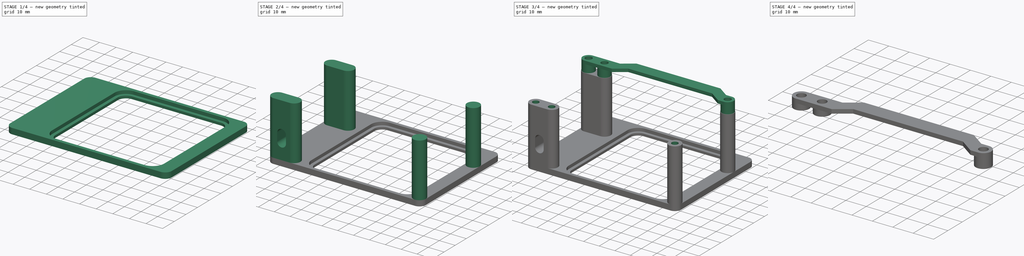
[diagram: build sequence overview — one tinted view per stage of 4, left to right]
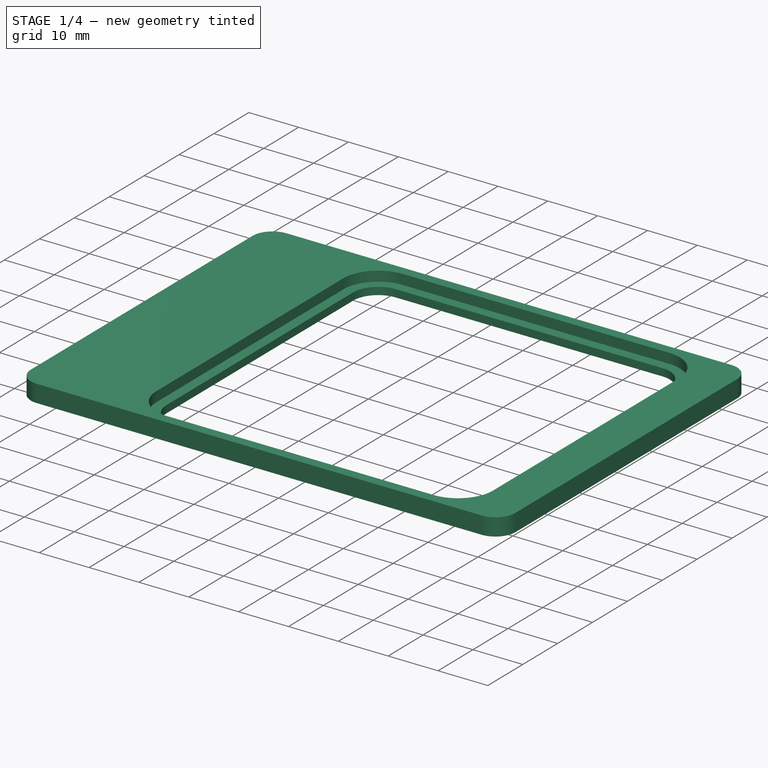
[diagram: stage 1 of 4 — iso view after this stage's code; geometry added in this stage tinted green]
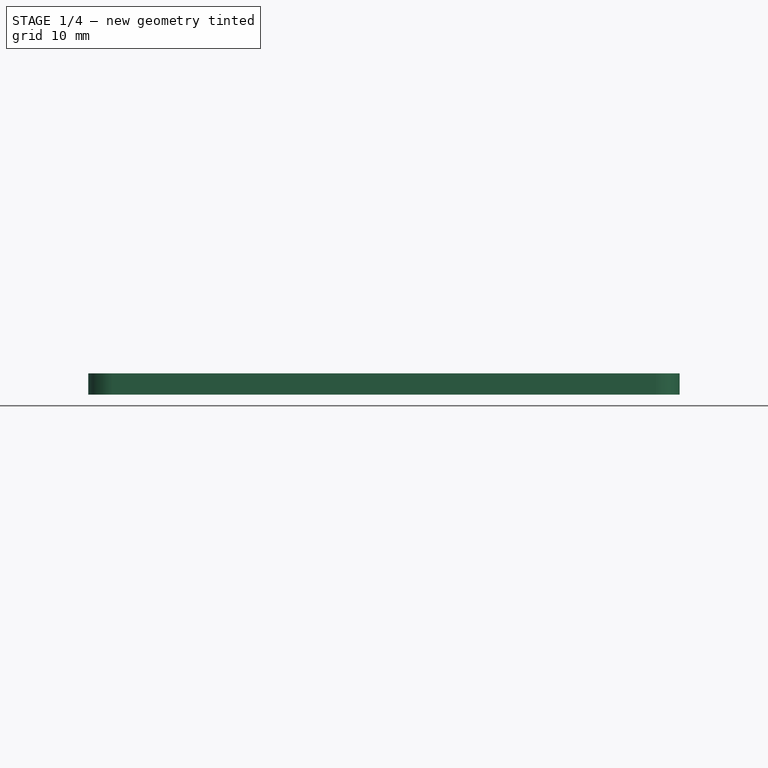
[diagram: stage 1 of 4 — front view after this stage's code; geometry added in this stage tinted green]
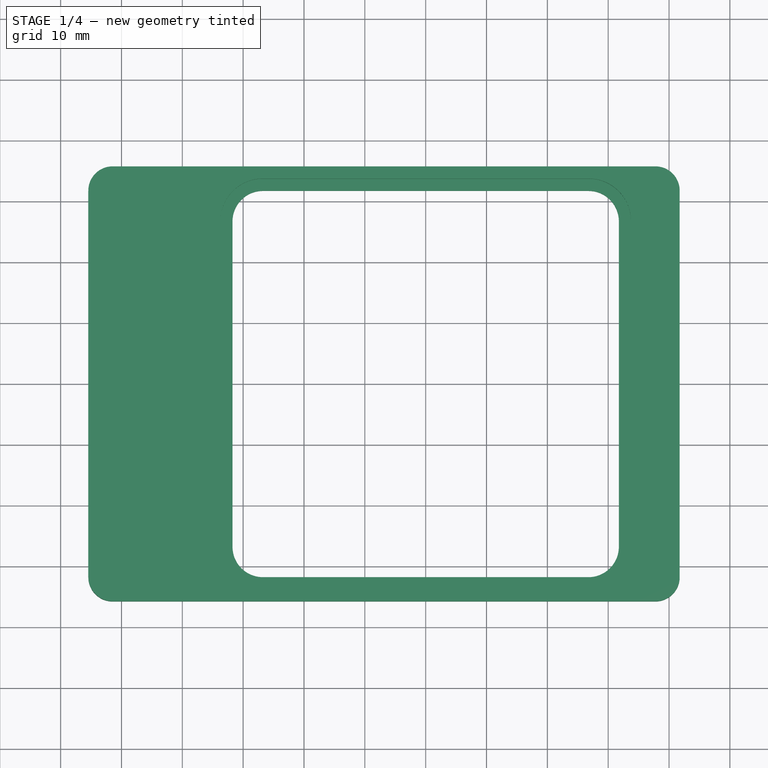
[diagram: stage 1 of 4 — top view after this stage's code; geometry added in this stage tinted green]
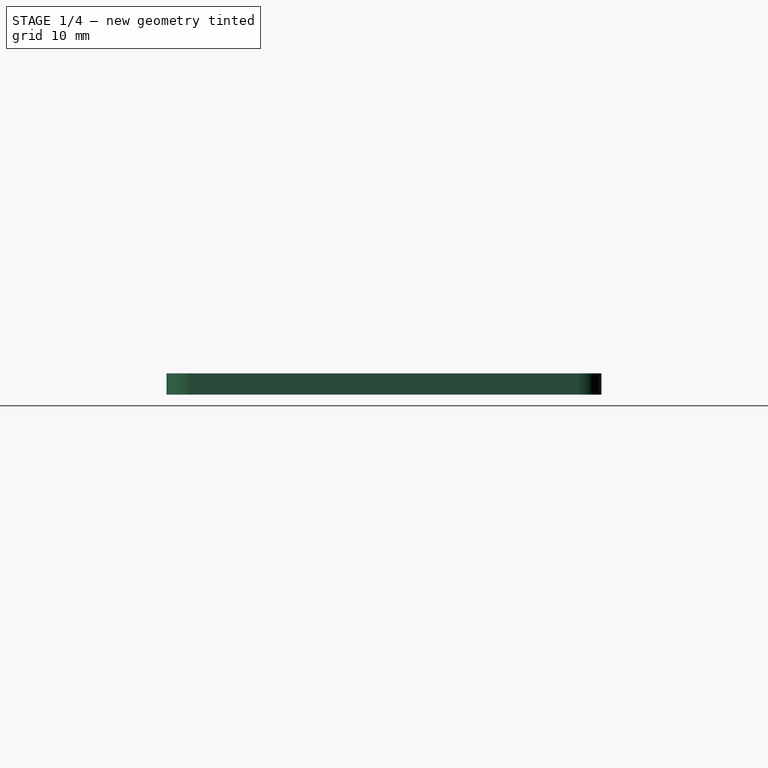
[diagram: stage 1 of 4 — right view after this stage's code; geometry added in this stage tinted green]
FCSTD DOCUMENT  (FreeCAD 0.21R33771 (Git))
Label: ControllerFrame1d
License: All rights reserved
LicenseURL: https://en.wikipedia.org/wiki/All_rights_reserved
objects: Sketcher::SketchObject×9, PartDesign::Pad×5, PartDesign::Pocket×4, PartDesign::Body×1
note: 28 computed .brp shape members not serialized (recipe doc carries the construction recipe); baked Part::Feature solids carry a one-line shape summary decoded from their .brp

FEATURE [Sketcher::SketchObject] Sketch  label="FrameSketch"
  FullyConstrained = true
  MapMode = 5
  Support = -> [XY_Plane]
  sketch-geometry (16):
    g0: LineSegment StartX=-26.75 StartY=-33.75 StartZ=0 EndX=26.75 EndY=-33.75 EndZ=0
    g1: LineSegment StartX=33.75 StartY=-26.75 StartZ=0 EndX=33.75 EndY=26.75 EndZ=0
    g2: LineSegment StartX=26.75 StartY=33.75 StartZ=0 EndX=-26.75 EndY=33.75 EndZ=0
    g3: LineSegment StartX=-33.75 StartY=26.75 StartZ=0 EndX=-33.75 EndY=-26.75 EndZ=0
    g4: ArcOfCircle CenterX=-26.75 CenterY=26.75 CenterZ=0 NormalX=0 NormalY=0 NormalZ=1 AngleXU=0 Radius=7 StartAngle=1.5708 EndAngle=3.14159
    g5: ArcOfCircle CenterX=26.75 CenterY=26.75 CenterZ=0 NormalX=0 NormalY=0 NormalZ=1 AngleXU=0 Radius=7 StartAngle=0 EndAngle=1.5708
    g6: ArcOfCircle CenterX=-26.75 CenterY=-26.75 CenterZ=0 NormalX=0 NormalY=0 NormalZ=1 AngleXU=0 Radius=7 StartAngle=3.14159 EndAngle=4.71239
    g7: ArcOfCircle CenterX=26.75 CenterY=-26.75 CenterZ=0 NormalX=0 NormalY=0 NormalZ=1 AngleXU=0 Radius=7 StartAngle=4.71239 EndAngle=6.28319
    g8: LineSegment StartX=-51.45 StartY=35.75 StartZ=0 EndX=37.75 EndY=35.75 EndZ=0
    g9: LineSegment StartX=41.75 StartY=31.75 StartZ=0 EndX=41.75 EndY=-31.75 EndZ=0
    g10: LineSegment StartX=37.75 StartY=-35.75 StartZ=0 EndX=-51.45 EndY=-35.75 EndZ=0
    g11: LineSegment StartX=-55.45 StartY=-31.75 StartZ=0 EndX=-55.45 EndY=31.75 EndZ=0
    g12: ArcOfCircle CenterX=-51.45 CenterY=31.75 CenterZ=0 NormalX=0 NormalY=0 NormalZ=1 AngleXU=0 Radius=4 StartAngle=1.5708 EndAngle=3.14159
    g13: ArcOfCircle CenterX=-51.45 CenterY=-31.75 CenterZ=0 NormalX=0 NormalY=0 NormalZ=1 AngleXU=0 Radius=4 StartAngle=3.14159 EndAngle=4.71239
    g14: ArcOfCircle CenterX=37.75 CenterY=-31.75 CenterZ=0 NormalX=0 NormalY=0 NormalZ=1 AngleXU=0 Radius=4 StartAngle=4.71239 EndAngle=6.28319
    g15: ArcOfCircle CenterX=37.75 CenterY=31.75 CenterZ=0 NormalX=0 NormalY=0 NormalZ=1 AngleXU=0 Radius=4 StartAngle=3e-16 EndAngle=1.5708
  constraints (38):
    c: Horizontal(g2)
    c: Vertical(g1)
    c: Equal(g0,g3)
    c: Tangent(g2,g4) = -1.5708
    c: Tangent(g3,g4) = -1.5708
    c: Tangent(g1,g5) = -1.5708
    c: Tangent(g2,g5) = -1.5708
    c: Tangent(g0,g6) = -1.5708
    c: Tangent(g3,g6) = -1.5708
    c: Tangent(g0,g7) = -1.5708
    c: Tangent(g1,g7) = -1.5708
    c: Equal(g6,g7)
    c: Equal(g6,g5)
    c: Equal(g6,g4)
    c: Radius(g6) = 7
    c: Symmetric(g3,g3,g-1)
    c: Symmetric(g0,g0,g-2)
    c: DistanceY(g0,g2) = 67.5  'Base Side Length'
    c: Horizontal(g8)
    c: Horizontal(g10)
    c: Vertical(g9)
    c: Vertical(g11)
    c: Tangent(g8,g12) = 1.5708
    c: Tangent(g11,g12) = 1.5708
    c: Tangent(g10,g13) = 1.5708
    c: Tangent(g11,g13) = 1.5708
    c: Tangent(g9,g14) = 1.5708
    c: Tangent(g10,g14) = 1.5708
    c: Tangent(g8,g15) = 1.5708
    c: Tangent(g9,g15) = 1.5708
    c: Equal(g12,g13)
    c: DistanceY(g2,g8) = 2
    c: Equal(g15,g14)
    c: DistanceY(g10,g0) = 2
    c: Equal(g14,g13)
    c: Radius(g15) = 4
    c: DistanceX(g1,g9) = 8
    c: DistanceX(g11,g3) = 21.7  'Servo Space'
FEATURE [PartDesign::Pad] Pad  label="FramePad"
  Direction = (0,0,1)
  Length = 2
  Length2 = 10
  Profile = -> Sketch
  ReferenceAxis = -> Sketch [N_Axis]
  Type = 0
FEATURE [Sketcher::SketchObject] Sketch001  label="BaseSketch"
  ExternalGeometry = -> [Pad]
  FullyConstrained = true
  MapMode = 5
  Placement = pos=(0,0,0) rot=(1,0,0;3.14159rad)
  Support = -> [Pad]
  sketch-geometry (16):
    g0: ArcOfCircle CenterX=-26.75 CenterY=26.75 CenterZ=0 NormalX=0 NormalY=0 NormalZ=1 AngleXU=0 Radius=5 StartAngle=1.5708 EndAngle=3.14159
    g1: ArcOfCircle CenterX=26.75 CenterY=26.75 CenterZ=0 NormalX=0 NormalY=0 NormalZ=1 AngleXU=0 Radius=5 StartAngle=-1.6493e-12 EndAngle=1.5708
    g2: ArcOfCircle CenterX=26.75 CenterY=-26.75 CenterZ=0 NormalX=0 NormalY=0 NormalZ=1 AngleXU=0 Radius=5 StartAngle=4.71239 EndAngle=6.28319
    g3: ArcOfCircle CenterX=-26.75 CenterY=-26.75 CenterZ=0 NormalX=0 NormalY=0 NormalZ=1 AngleXU=0 Radius=5 StartAngle=3.14159 EndAngle=4.71239
    g4: ArcOfCircle CenterX=-51.45 CenterY=31.75 CenterZ=0 NormalX=0 NormalY=0 NormalZ=1 AngleXU=0 Radius=4 StartAngle=1.5708 EndAngle=3.14159
    g5: ArcOfCircle CenterX=-51.45 CenterY=-31.75 CenterZ=0 NormalX=0 NormalY=0 NormalZ=1 AngleXU=0 Radius=4 StartAngle=3.14159 EndAngle=4.71239
    g6: LineSegment StartX=-26.75 StartY=31.75 StartZ=0 EndX=26.75 EndY=31.75 EndZ=0
    g7: LineSegment StartX=31.75 StartY=26.75 StartZ=0 EndX=31.75 EndY=-26.75 EndZ=0
    g8: LineSegment StartX=26.75 StartY=-31.75 StartZ=0 EndX=-26.75 EndY=-31.75 EndZ=0
    g9: LineSegment StartX=-31.75 StartY=-26.75 StartZ=0 EndX=-31.75 EndY=26.75 EndZ=0
    g10: ArcOfCircle CenterX=37.75 CenterY=31.75 CenterZ=0 NormalX=0 NormalY=0 NormalZ=1 AngleXU=0 Radius=4 StartAngle=0 EndAngle=1.5708
    g11: ArcOfCircle CenterX=37.75 CenterY=-31.75 CenterZ=0 NormalX=0 NormalY=0 NormalZ=1 AngleXU=0 Radius=4 StartAngle=4.71239 EndAngle=6.28319
    g12: LineSegment StartX=41.75 StartY=31.75 StartZ=0 EndX=41.75 EndY=-31.75 EndZ=0
    g13: LineSegment StartX=37.75 StartY=-35.75 StartZ=0 EndX=-51.45 EndY=-35.75 EndZ=0
    g14: LineSegment StartX=-55.45 StartY=31.75 StartZ=0 EndX=-55.45 EndY=-31.75 EndZ=0
    g15: LineSegment StartX=-51.45 StartY=35.75 StartZ=0 EndX=37.75 EndY=35.75 EndZ=0
  constraints (35):
    c: Horizontal(g6)
    c: Vertical(g7)
    c: Horizontal(g8)
    c: Vertical(g9)
    c: Vertical(g12)
    c: Tangent(g5,g14) = -1.5708
    c: Tangent(g5,g13) = 1.5708
    c: Vertical(g14)
    c: Tangent(g14,g4) = -1.5708
    c: Tangent(g15,g4) = 1.5708
    c: Equal(g3,g2)
    c: Equal(g2,g1)
    c: Equal(g1,g0)
    c: Tangent(g9,g0) = 1.5708
    c: Tangent(g8,g3) = 1.5708
    c: Tangent(g7,g2) = 1.5708
    c: Tangent(g6,g0) = 1.5708
    c: Tangent(g9,g3) = 1.5708
    c: Tangent(g8,g2) = 1.5708
    c: Tangent(g12,g11) = 1.5708
    c: Tangent(g13,g11) = 1.5708
    c: Tangent(g10,g15) = 1.5708
    c: Tangent(g12,g10) = 1.5708
    c: Tangent(g6,g1) = 1.5708
    c: Tangent(g1,g7) = 1.5708
    c: Coincident(g3,g-6)
    c: Coincident(g-3,g5)
    c: Coincident(g-5,g1)
    c: Coincident(g10,g-4)
    c: Coincident(g10,g-4)
    c: Horizontal(g13)
    c: Equal(g11,g10)
    c: Equal(g5,g4)
    c: Equal(g4,g-3)
    c: DistanceY(g1,g-5) = 2
FEATURE [PartDesign::Pad] Pad001  label="BasePad"
  BaseFeature = -> Pad
  Direction = (0,0,-1)
  Length = 1.5
  Length2 = 10
  Profile = -> Sketch001
  ReferenceAxis = -> Sketch001 [N_Axis]
  Type = 0
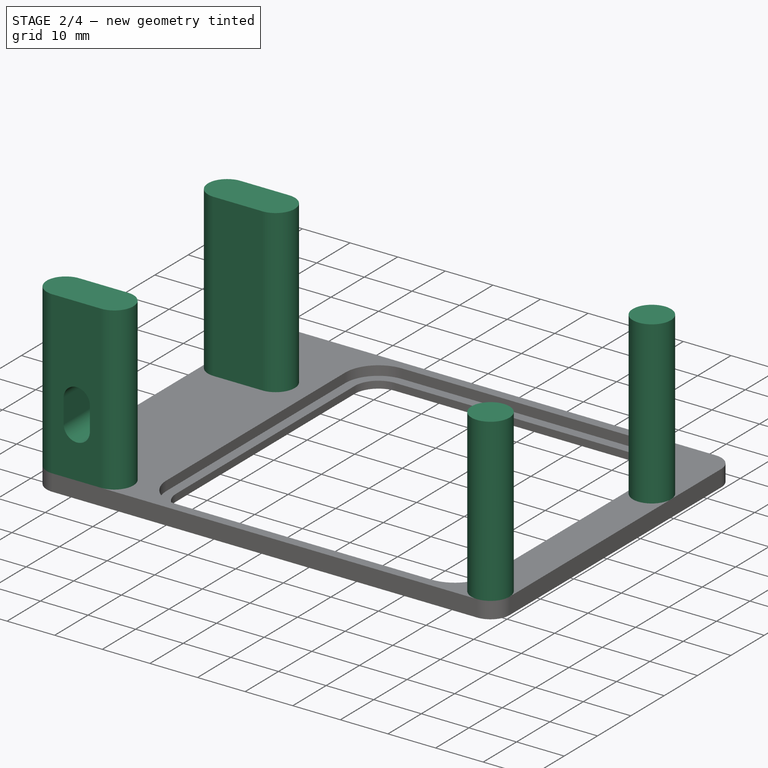
[diagram: stage 2 of 4 — iso view after this stage's code; geometry added in this stage tinted green]
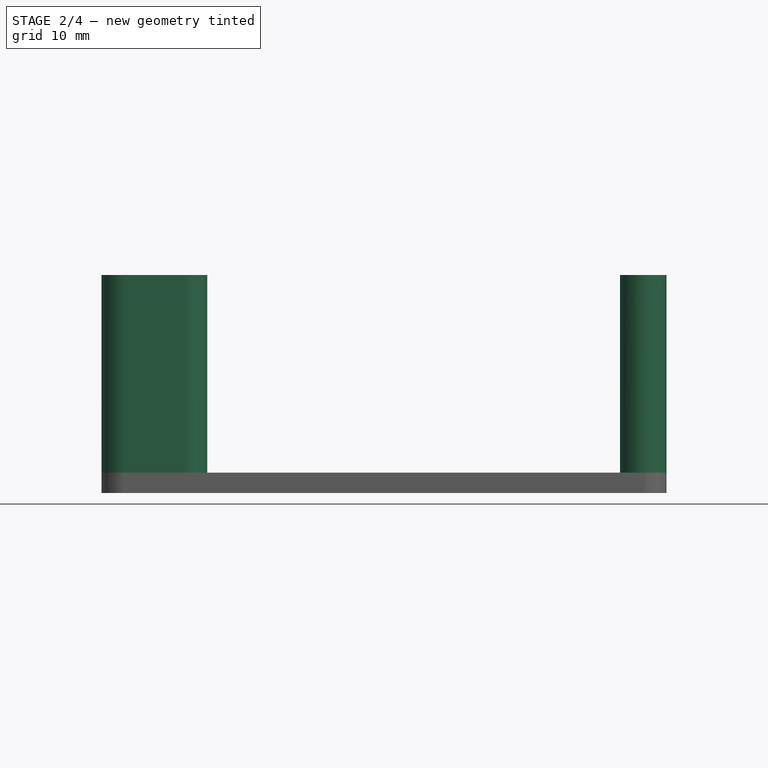
[diagram: stage 2 of 4 — front view after this stage's code; geometry added in this stage tinted green]
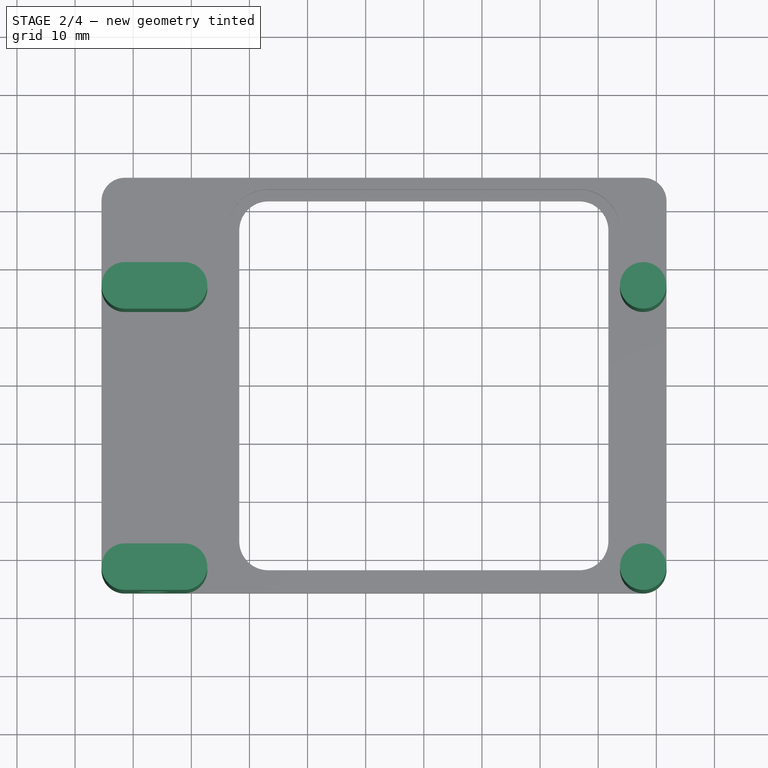
[diagram: stage 2 of 4 — top view after this stage's code; geometry added in this stage tinted green]
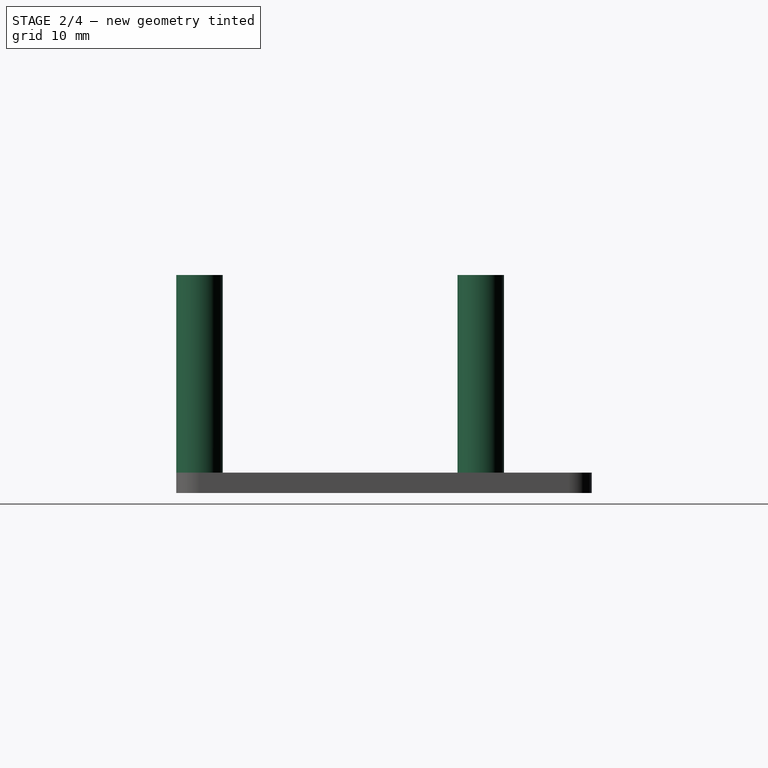
[diagram: stage 2 of 4 — right view after this stage's code; geometry added in this stage tinted green]
FEATURE [Sketcher::SketchObject] Sketch002  label="PillarSketch"
  ExternalGeometry = -> [Pad001]
  FullyConstrained = true
  MapMode = 5
  Placement = pos=(0,0,2) rot=(0,0,1;0rad)
  Support = -> [Pad001]
  sketch-geometry (14):
    g0: Circle CenterX=37.75 CenterY=-31.75 CenterZ=0 NormalX=0 NormalY=0 NormalZ=1 AngleXU=0 Radius=4
    g1: Circle CenterX=37.75 CenterY=16.65 CenterZ=0 NormalX=0 NormalY=0 NormalZ=1 AngleXU=0 Radius=4
    g2: ArcOfCircle CenterX=-51.45 CenterY=16.65 CenterZ=0 NormalX=0 NormalY=0 NormalZ=1 AngleXU=0 Radius=4 StartAngle=1.5708 EndAngle=4.71239
    g3: ArcOfCircle CenterX=-41.25 CenterY=16.65 CenterZ=0 NormalX=0 NormalY=0 NormalZ=1 AngleXU=0 Radius=4 StartAngle=4.71239 EndAngle=7.85398
    g4: LineSegment StartX=-51.45 StartY=12.65 StartZ=0 EndX=-41.25 EndY=12.65 EndZ=0
    g5: LineSegment StartX=-41.25 StartY=20.65 StartZ=0 EndX=-51.45 EndY=20.65 EndZ=0
    g6: ArcOfCircle CenterX=-41.25 CenterY=-31.75 CenterZ=0 NormalX=0 NormalY=0 NormalZ=1 AngleXU=0 Radius=4 StartAngle=4.71239 EndAngle=7.85398
    g7: ArcOfCircle CenterX=-51.45 CenterY=-31.75 CenterZ=0 NormalX=0 NormalY=0 NormalZ=1 AngleXU=0 Radius=4 StartAngle=1.5708 EndAngle=4.71239
    g8: LineSegment StartX=-41.25 StartY=-27.75 StartZ=0 EndX=-51.45 EndY=-27.75 EndZ=0
    g9: LineSegment StartX=-51.45 StartY=-35.75 StartZ=0 EndX=-41.25 EndY=-35.75 EndZ=0
    g10: LineSegment StartX=-51.45 StartY=-31.75 StartZ=0 EndX=37.75 EndY=-31.75 EndZ=0
    g11: LineSegment StartX=-41.25 StartY=-31.75 StartZ=0 EndX=-41.25 EndY=16.65 EndZ=0
    g12: LineSegment StartX=37.75 StartY=16.65 StartZ=0 EndX=-51.45 EndY=16.65 EndZ=0
    g13: LineSegment StartX=-51.45 StartY=16.65 StartZ=0 EndX=-51.45 EndY=-31.75 EndZ=0
  constraints (32):
    c: Tangent(g2,g4) = -1.5708
    c: Tangent(g4,g3) = -1.5708
    c: Tangent(g3,g5) = -1.5708
    c: Tangent(g5,g2) = -1.5708
    c: Equal(g2,g3)
    c: Tangent(g6,g8) = -1.5708
    c: Tangent(g8,g7) = -1.5708
    c: Tangent(g7,g9) = -1.5708
    c: Tangent(g9,g6) = -1.5708
    c: Equal(g6,g7)
    c: Equal(g6,g2)
    c: Equal(g2,g0)
    c: Equal(g0,g1)
    c: Coincident(g12,g13)
    c: Coincident(g13,g10)
    c: Horizontal(g12)
    c: Vertical(g11)
    c: Vertical(g13)
    c: Coincident(g10,g-3)
    c: PointOnObject(g11,g10)
    c: Coincident(g12,g1)
    c: PointOnObject(g11,g12)
    c: Coincident(g-4,g10)
    c: Coincident(g-4,g0)
    c: Equal(g0,g-4)
    c: DistanceX(g12,g11) = 10.2  'Servo Width'
    c: DistanceY(g10,g12) = 48.4  'Servo Length'
    c: Coincident(g7,g10)
    c: Coincident(g6,g11)
    c: Coincident(g2,g12)
    c: Coincident(g3,g11)
    c: Equal(g12,g10)
FEATURE [PartDesign::Pad] Pad002  label="PillarPad"
  BaseFeature = -> Pad001
  Direction = (0,0,1)
  Length = 34
  Length2 = 10
  Profile = -> Sketch002
  ReferenceAxis = -> Sketch002 [N_Axis]
  Type = 0
FEATURE [Sketcher::SketchObject] Sketch003  label="ServoCableSketch"
  ExternalGeometry = -> [Pad002]
  FullyConstrained = true
  MapMode = 5
  Placement = pos=(9.7e-15,-27.75,0) rot=(0,0.707107,0.707107;3.14159rad)
  Support = -> [Pad002]
  sketch-geometry (5):
    g0: LineSegment StartX=46.35 StartY=17 StartZ=0 EndX=46.35 EndY=36 EndZ=0
    g1: ArcOfCircle CenterX=46.35 CenterY=12 CenterZ=0 NormalX=0 NormalY=0 NormalZ=1 AngleXU=0 Radius=2.75 StartAngle=3.14159 EndAngle=6.28319
    g2: ArcOfCircle CenterX=46.35 CenterY=17 CenterZ=0 NormalX=0 NormalY=0 NormalZ=1 AngleXU=0 Radius=2.75 StartAngle=-5.401e-12 EndAngle=3.14159
    g3: LineSegment StartX=49.1 StartY=12 StartZ=0 EndX=49.1 EndY=17 EndZ=0
    g4: LineSegment StartX=43.6 StartY=17 StartZ=0 EndX=43.6 EndY=12 EndZ=0
  constraints (12):
    c: Vertical(g0)
    c: Tangent(g1,g3) = -1.5708
    c: Tangent(g3,g2) = -1.5708
    c: Tangent(g2,g4) = -1.5708
    c: Tangent(g4,g1) = -1.5708
    c: Equal(g1,g2)
    c: PointOnObject(g1,g0)
    c: Diameter(g1) = 5.5
    c: DistanceY(g1,g-3) = 24  'Servo Cable Position (approx.)'
    c: Coincident(g0,g2)
    c: DistanceY(g1,g2) = 5
    c: Symmetric(g-3,g-4,g0)
FEATURE [PartDesign::Pocket] Pocket  label="ServoCablePocket"
  BaseFeature = -> Pad002
  Direction = (3e-16,-1,2e-16)
  Length = 0
  Length2 = 5
  Profile = -> Sketch003
  ReferenceAxis = -> Sketch003 [N_Axis]
  Type = 1
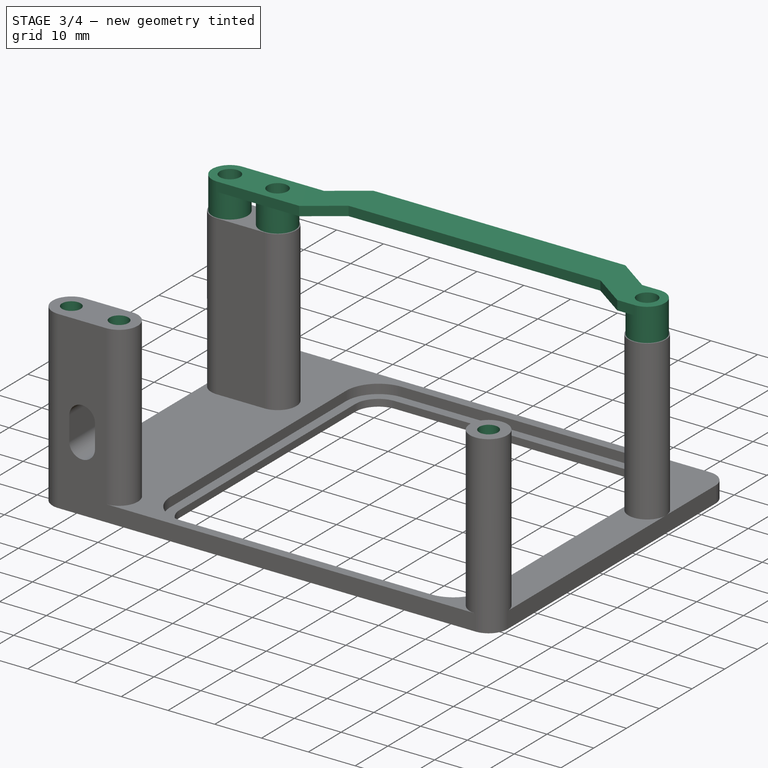
[diagram: stage 3 of 4 — iso view after this stage's code; geometry added in this stage tinted green]
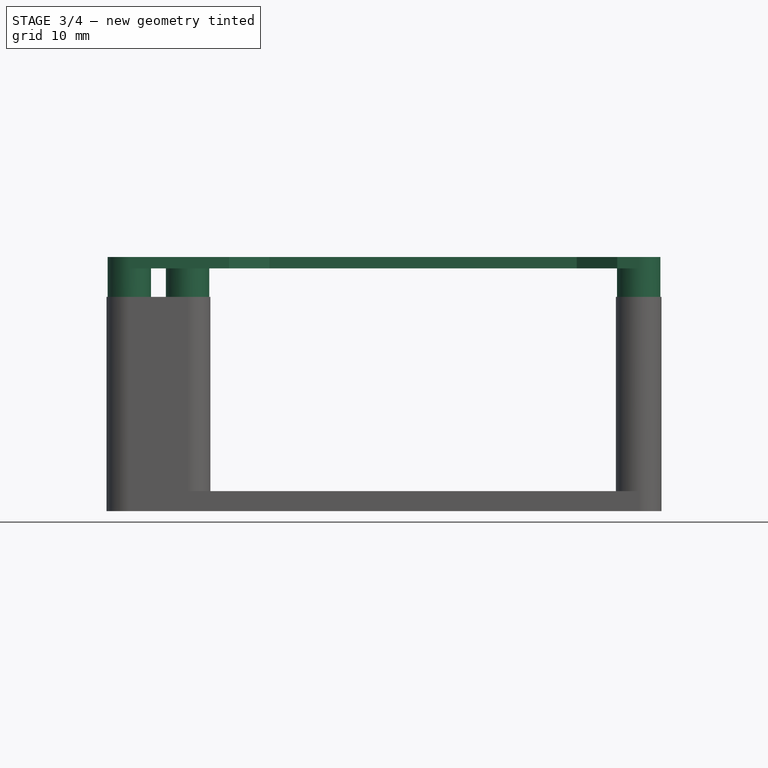
[diagram: stage 3 of 4 — front view after this stage's code; geometry added in this stage tinted green]
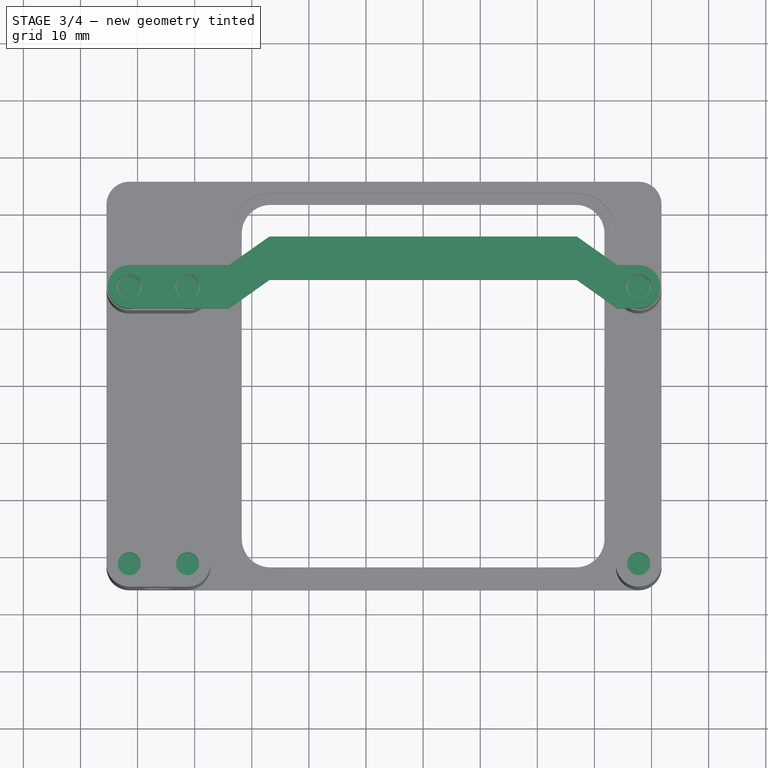
[diagram: stage 3 of 4 — top view after this stage's code; geometry added in this stage tinted green]
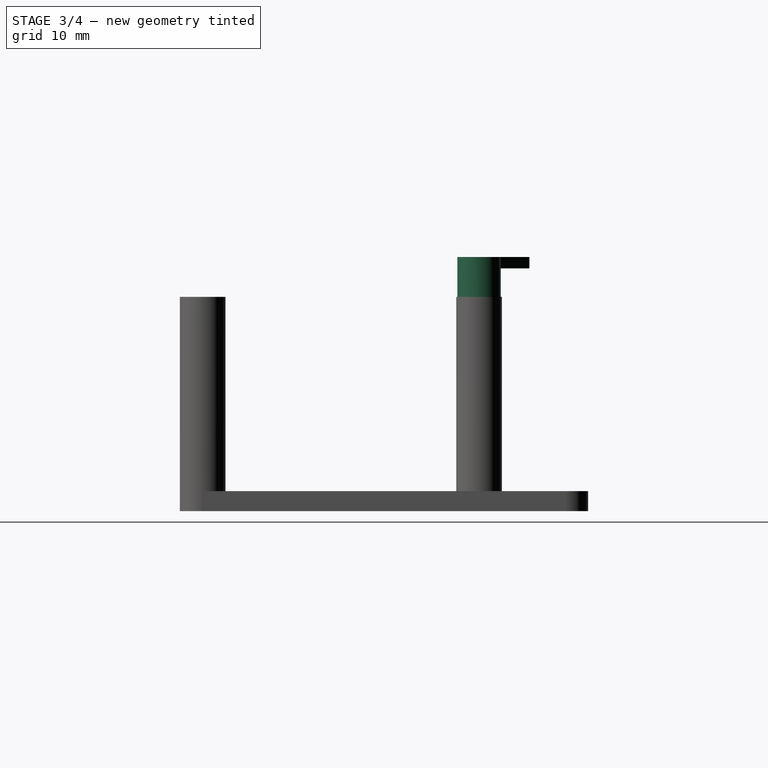
[diagram: stage 3 of 4 — right view after this stage's code; geometry added in this stage tinted green]
FEATURE [Sketcher::SketchObject] Sketch006  label="BracketPillarSketch"
  ExternalGeometry = -> [Pocket]
  FullyConstrained = false
  MapMode = 5
  Placement = pos=(0,0,36) rot=(0,0,1;0rad)
  Support = -> [Pocket]
  sketch-geometry (6):
    g0: Circle CenterX=-51.45 CenterY=16.65 CenterZ=0 NormalX=0 NormalY=0 NormalZ=1 AngleXU=0 Radius=2.15
    g1: Circle CenterX=-41.25 CenterY=16.65 CenterZ=0 NormalX=0 NormalY=0 NormalZ=1 AngleXU=0 Radius=2.15
    g2: Circle CenterX=37.75 CenterY=16.65 CenterZ=0 NormalX=0 NormalY=0 NormalZ=1 AngleXU=0 Radius=2.15
    g3: Circle CenterX=37.75 CenterY=16.65 CenterZ=0 NormalX=0 NormalY=0 NormalZ=1 AngleXU=0 Radius=3.8
    g4: Circle CenterX=-51.45 CenterY=16.65 CenterZ=0 NormalX=0 NormalY=0 NormalZ=1 AngleXU=0 Radius=3.8
    g5: Circle CenterX=-41.25 CenterY=16.65 CenterZ=0 NormalX=0 NormalY=0 NormalZ=1 AngleXU=0 Radius=3.8
  constraints (8):
    c: Coincident(g3,g2)
    c: Equal(g0,g1)
    c: Equal(g1,g2)
    c: Diameter(g2) = 4.3
    c: Coincident(g4,g0)
    c: Coincident(g5,g1)
    c: Equal(g5,g3)
    c: Equal(g4,g5)
FEATURE [Sketcher::SketchObject] Sketch009  label="PillarThreadsSketch"
  ExternalGeometry = -> [Pocket]
  FullyConstrained = true
  MapMode = 5
  Placement = pos=(0,0,36) rot=(0,0,1;0rad)
  Support = -> [Pocket]
  sketch-geometry (6):
    g0: Circle CenterX=-51.45 CenterY=16.65 CenterZ=0 NormalX=0 NormalY=0 NormalZ=1 AngleXU=0 Radius=2
    g1: Circle CenterX=-41.25 CenterY=16.65 CenterZ=0 NormalX=0 NormalY=0 NormalZ=1 AngleXU=0 Radius=2
    g2: Circle CenterX=37.75 CenterY=16.65 CenterZ=0 NormalX=0 NormalY=0 NormalZ=1 AngleXU=0 Radius=2
    g3: Circle CenterX=37.75 CenterY=-31.75 CenterZ=0 NormalX=0 NormalY=0 NormalZ=1 AngleXU=0 Radius=2
    g4: Circle CenterX=-41.25 CenterY=-31.75 CenterZ=0 NormalX=0 NormalY=0 NormalZ=1 AngleXU=0 Radius=2
    g5: Circle CenterX=-51.45 CenterY=-31.75 CenterZ=0 NormalX=0 NormalY=0 NormalZ=1 AngleXU=0 Radius=2
  constraints (12):
    c: Coincident(g0,g-3)
    c: Coincident(g1,g-4)
    c: Coincident(g2,g-8)
    c: Coincident(g3,g-7)
    c: Coincident(g4,g-6)
    c: Coincident(g5,g-5)
    c: Equal(g5,g4)
    c: Equal(g5,g3)
    c: Equal(g5,g2)
    c: Equal(g5,g1)
    c: Equal(g5,g0)
    c: Diameter(g5) = 4
FEATURE [PartDesign::Pocket] Pocket003  label="PillarThreadsPocket"
  BaseFeature = -> Pocket
  Direction = (0,0,-1)
  Length = 5
  Length2 = 5
  Profile = -> Sketch009
  ReferenceAxis = -> Sketch009 [N_Axis]
  Type = 0
FEATURE [PartDesign::Pad] Pad003  label="BracketPillarPad"
  BaseFeature = -> Pocket003
  Direction = (0,0,1)
  Length = 5
  Length2 = 10
  Profile = -> Sketch006
  ReferenceAxis = -> Sketch006 [N_Axis]
  Type = 0
FEATURE [Sketcher::SketchObject] Sketch005  label="BracketSketch"
  ExternalGeometry = -> [Pocket]
  FullyConstrained = false
  MapMode = 5
  Placement = pos=(0,0,41) rot=(0,0,1;0rad)
  Support = -> [Pad003]
  sketch-geometry (17):
    g0: Circle CenterX=-51.45 CenterY=16.65 CenterZ=0 NormalX=0 NormalY=0 NormalZ=1 AngleXU=0 Radius=2.15
    g1: Circle CenterX=-41.25 CenterY=16.65 CenterZ=0 NormalX=0 NormalY=0 NormalZ=1 AngleXU=0 Radius=2.15
    g2: Circle CenterX=37.75 CenterY=16.65 CenterZ=0 NormalX=0 NormalY=0 NormalZ=1 AngleXU=0 Radius=2.15
    g3: LineSegment StartX=-51.45 StartY=12.85 StartZ=0 EndX=-34.0012 EndY=12.85 EndZ=0
    g4: LineSegment StartX=-34.0012 StartY=12.85 StartZ=0 EndX=-26.9066 EndY=17.85 EndZ=0
    g5: LineSegment StartX=-26.9066 StartY=17.85 StartZ=0 EndX=26.9066 EndY=17.85 EndZ=0
    g6: LineSegment StartX=26.9066 StartY=17.85 StartZ=0 EndX=34.0012 EndY=12.85 EndZ=0
    g7: LineSegment StartX=34.0012 StartY=12.85 StartZ=0 EndX=37.75 EndY=12.85 EndZ=0
    g8: LineSegment StartX=37.75 StartY=20.45 StartZ=0 EndX=34.0012 EndY=20.45 EndZ=0
    g9: LineSegment StartX=34.0012 StartY=20.45 StartZ=0 EndX=26.9066 EndY=25.45 EndZ=0
    g10: LineSegment StartX=26.9066 StartY=25.45 StartZ=0 EndX=-26.9066 EndY=25.45 EndZ=0
    g11: LineSegment StartX=-26.9066 StartY=25.45 StartZ=0 EndX=-34.0012 EndY=20.45 EndZ=0
    g12: LineSegment StartX=-34.0012 StartY=20.45 StartZ=0 EndX=-51.45 EndY=20.45 EndZ=0
    g13: ArcOfCircle CenterX=-51.45 CenterY=16.65 CenterZ=0 NormalX=0 NormalY=0 NormalZ=1 AngleXU=0 Radius=3.8 StartAngle=1.5708 EndAngle=4.71239
    g14: ArcOfCircle CenterX=37.75 CenterY=16.65 CenterZ=0 NormalX=0 NormalY=0 NormalZ=1 AngleXU=0 Radius=3.8 StartAngle=4.71239 EndAngle=7.85398
    g15: LineSegment StartX=-34.0012 StartY=12.85 StartZ=0 EndX=-34.0012 EndY=20.45 EndZ=0
    g16: LineSegment StartX=-26.9066 StartY=17.85 StartZ=0 EndX=-26.9066 EndY=25.45 EndZ=0
  constraints (32):
    c: Equal(g0,g1)
    c: Equal(g1,g2)
    c: Diameter(g2) = 4.3
    c: Horizontal(g3)
    c: Coincident(g3,g4)
    c: Coincident(g4,g5)
    c: Coincident(g5,g6)
    c: Coincident(g6,g7)
    c: Coincident(g8,g9)
    c: Coincident(g9,g10)
    c: Coincident(g10,g11)
    c: Coincident(g11,g12)
    c: Horizontal(g12)
    c: Coincident(g13,g0)
    c: Coincident(g14,g2)
    c: Tangent(g13,g3) = -1.5708
    c: Tangent(g13,g12) = -1.5708
    c: Tangent(g14,g8) = -1.5708
    c: Tangent(g14,g7) = -1.5708
    c: DistanceY(g3,g4) = 5
    c: Coincident(g15,g3)
    c: Coincident(g15,g11)
    c: Coincident(g16,g4)
    c: Coincident(g16,g10)
    c: Vertical(g15)
    c: Vertical(g16)
    c: Equal(g15,g16)
    c: Horizontal(g8)
    c: Symmetric(g10,g9,g-2)
    c: Symmetric(g4,g5,g-2)
    c: Symmetric(g3,g6,g-2)
    c: Symmetric(g8,g11,g-2)
FEATURE [PartDesign::Pad] Pad004  label="BracketPad"
  BaseFeature = -> Pad003
  Direction = (0,0,1)
  Length = 2
  Length2 = 10
  Profile = -> Sketch005
  ReferenceAxis = -> Sketch005 [N_Axis]
  Type = 0
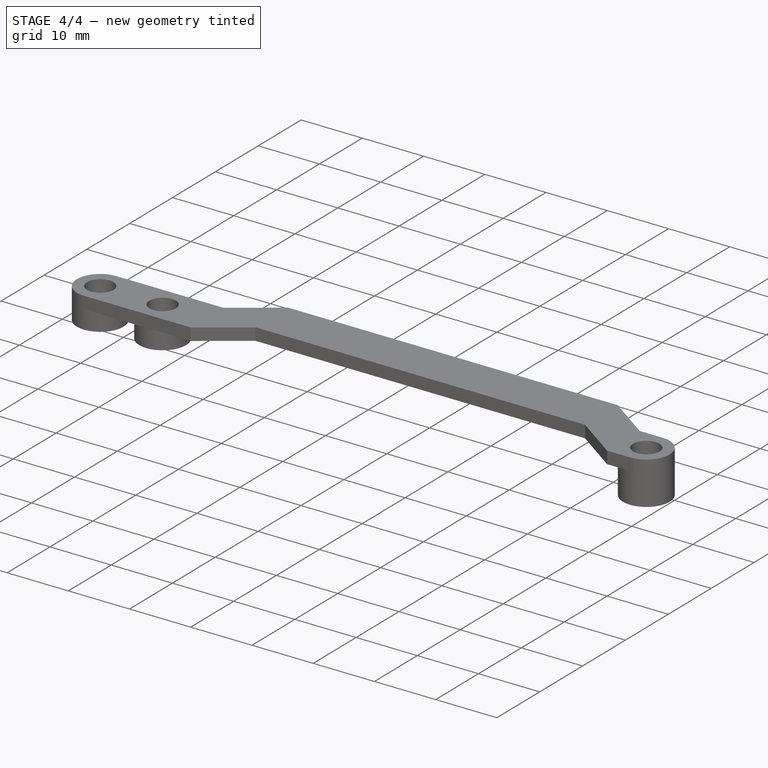
[diagram: stage 4 of 4 — iso view after this stage's code; geometry added in this stage tinted green]
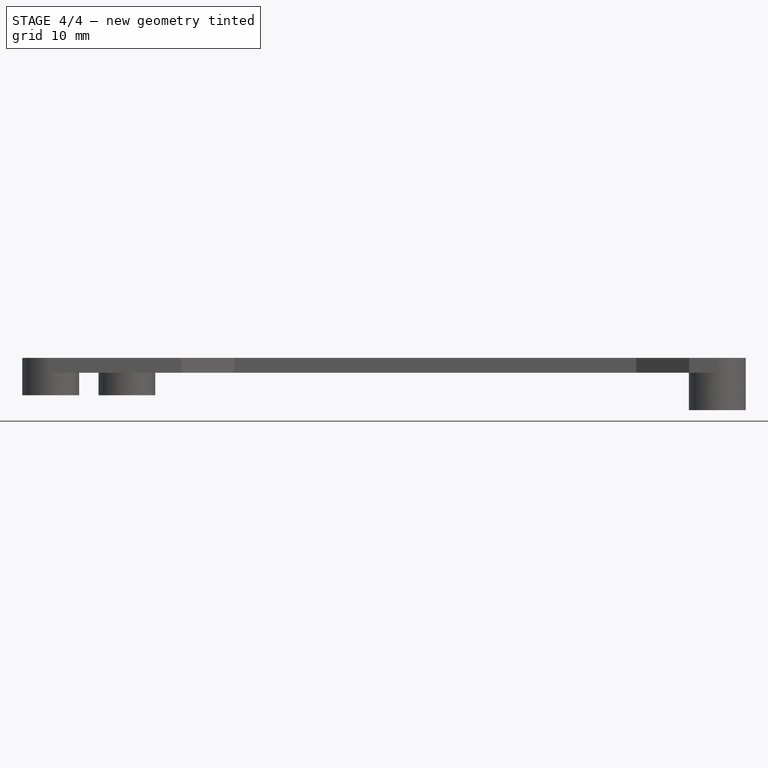
[diagram: stage 4 of 4 — front view after this stage's code; geometry added in this stage tinted green]
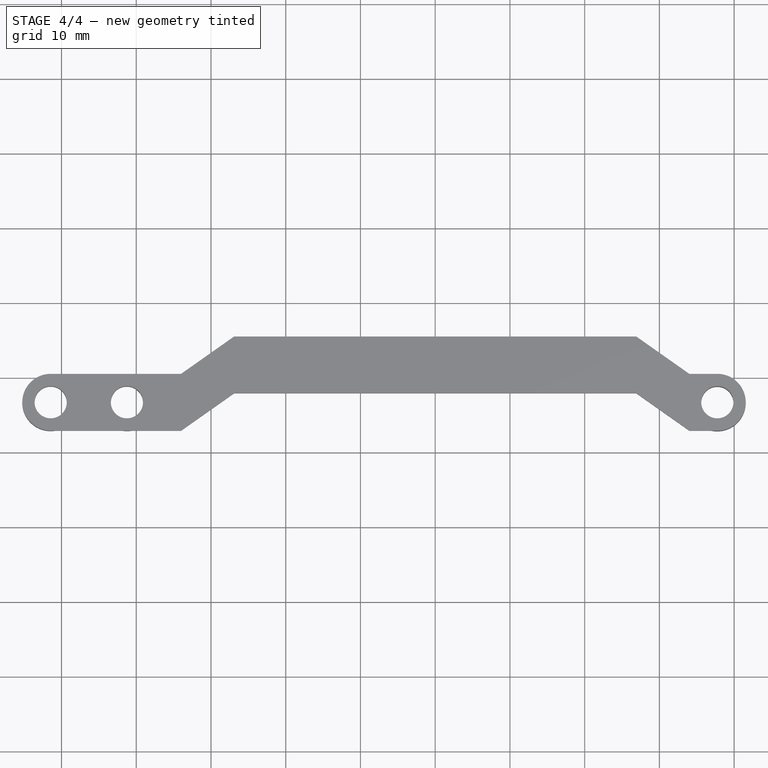
[diagram: stage 4 of 4 — top view after this stage's code; geometry added in this stage tinted green]
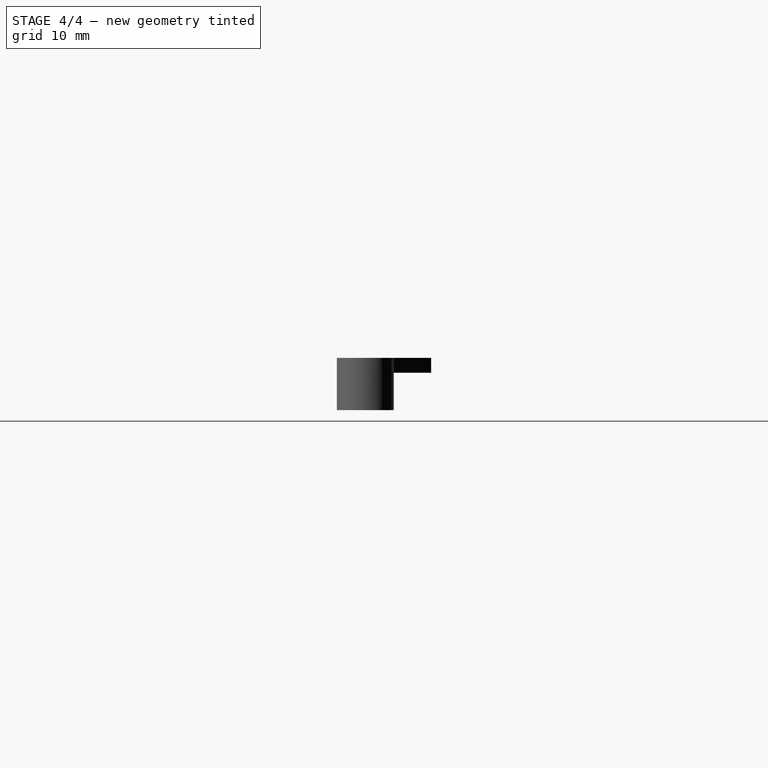
[diagram: stage 4 of 4 — right view after this stage's code; geometry added in this stage tinted green]
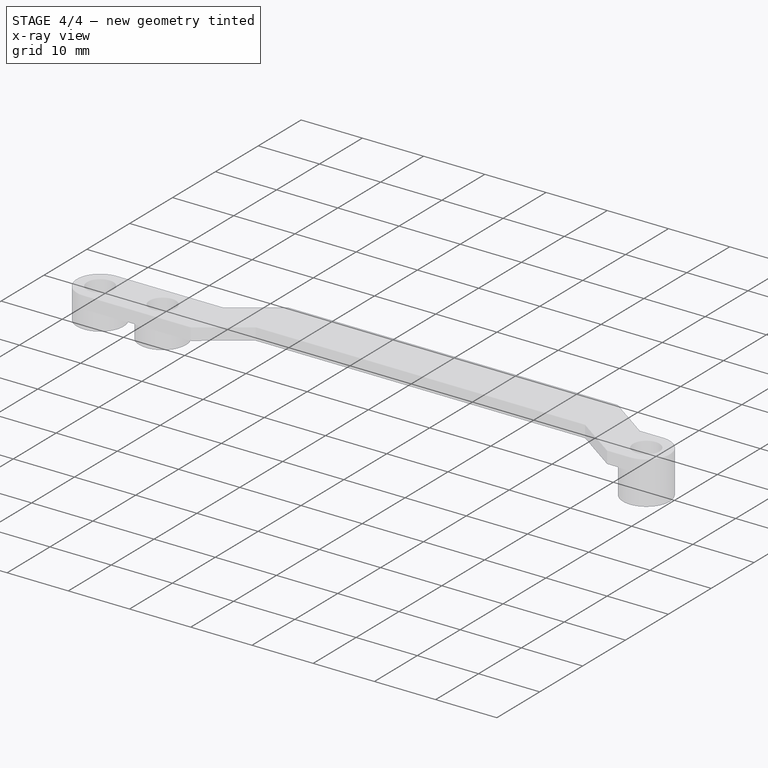
[diagram: stage 4 of 4 — x-ray composite at the iso view; earlier geometry ghosted, this stage's added geometry solid]
FEATURE [Sketcher::SketchObject] Sketch007  label="FrameRemoverSketch"
  FullyConstrained = false
  MapMode = 5
  Placement = pos=(0,0,36) rot=(0,0,1;0rad)
  Support = -> [Pad004]
  sketch-geometry (4):
    g0: LineSegment StartX=-57.5864 StartY=40.3833 StartZ=0 EndX=52.7511 EndY=40.3833 EndZ=0
    g1: LineSegment StartX=52.7511 StartY=40.3833 StartZ=0 EndX=52.7511 EndY=-41.5205 EndZ=0
    g2: LineSegment StartX=52.7511 StartY=-41.5205 StartZ=0 EndX=-57.5864 EndY=-41.5205 EndZ=0
    g3: LineSegment StartX=-57.5864 StartY=-41.5205 StartZ=0 EndX=-57.5864 EndY=40.3833 EndZ=0
  constraints (8):
    c: Coincident(g0,g1)
    c: Coincident(g1,g2)
    c: Coincident(g2,g3)
    c: Coincident(g3,g0)
    c: Horizontal(g0)
    c: Horizontal(g2)
    c: Vertical(g1)
    c: Vertical(g3)
FEATURE [PartDesign::Pocket] Pocket001  label="FrameRemover"
  BaseFeature = -> Pad004
  Direction = (0,0,-1)
  Length = 5
  Length2 = 5
  Profile = -> Sketch007
  ReferenceAxis = -> Sketch007 [N_Axis]
  Type = 1
FEATURE [Sketcher::SketchObject] Sketch008  label="ServoFlapsShortenerSketch"
  FullyConstrained = false
  MapMode = 5
  Placement = pos=(0,0,36) rot=(1,0,0;3.14159rad)
  Support = -> [Pocket001]
  sketch-geometry (4):
    g0: LineSegment StartX=-55.4646 StartY=-9.21824 StartZ=0 EndX=-32.6762 EndY=-9.21824 EndZ=0
    g1: LineSegment StartX=-32.6762 StartY=-9.21824 StartZ=0 EndX=-32.6762 EndY=-24.1043 EndZ=0
    g2: LineSegment StartX=-32.6762 StartY=-24.1043 StartZ=0 EndX=-55.4646 EndY=-24.1043 EndZ=0
    g3: LineSegment StartX=-55.4646 StartY=-24.1043 StartZ=0 EndX=-55.4646 EndY=-9.21824 EndZ=0
  constraints (8):
    c: Coincident(g0,g1)
    c: Coincident(g1,g2)
    c: Coincident(g2,g3)
    c: Coincident(g3,g0)
    c: Horizontal(g0)
    c: Horizontal(g2)
    c: Vertical(g1)
    c: Vertical(g3)
FEATURE [PartDesign::Pocket] Pocket002  label="ServoFlapsShortenerPocket"
  BaseFeature = -> Pocket001
  Direction = (0,0,1)
  Length = 2
  Length2 = 5
  Profile = -> Sketch008
  ReferenceAxis = -> Sketch008 [N_Axis]
  Type = 0
FEATURE [PartDesign::Body] Body
  Group = -> [Sketch,Pad,Sketch001,Pad001,Sketch002,Pad002,Sketch003,Pocket,Sketch006,Pocket003,Pad003,Sketch005,Pad004,Sketch007,Pocket001,Sketch008,Pocket002,Sketch009]
  Origin = -> Origin
  Tip = -> Pocket003
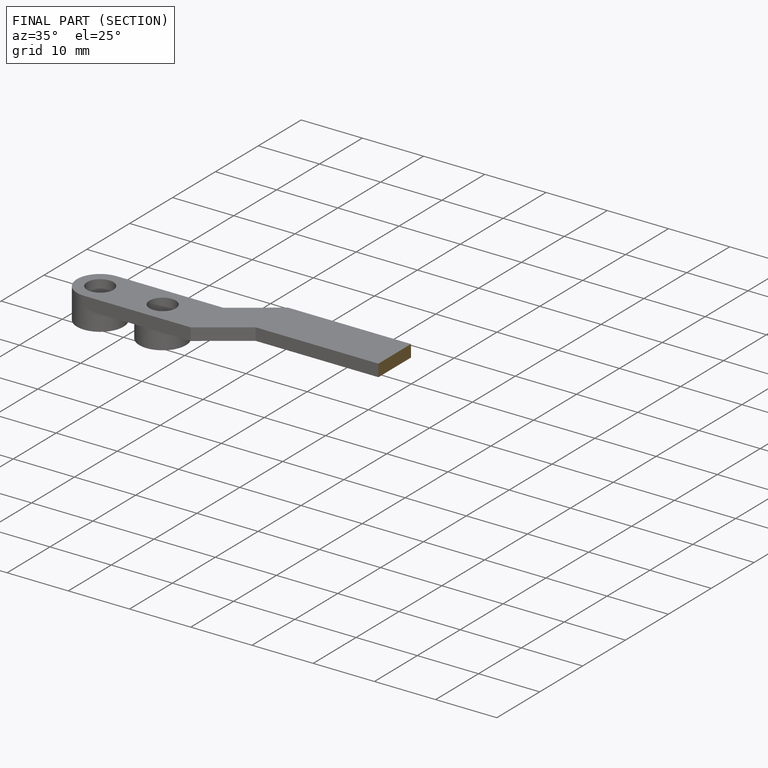
[diagram: finished part — half-section view (interior)]
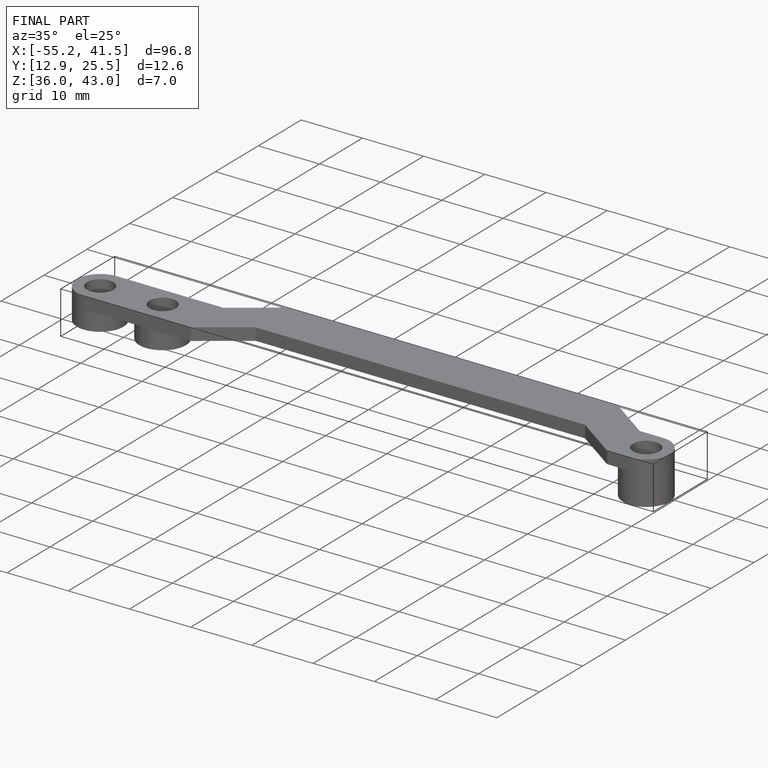
[diagram: finished part — iso view with bounding-box wireframe]
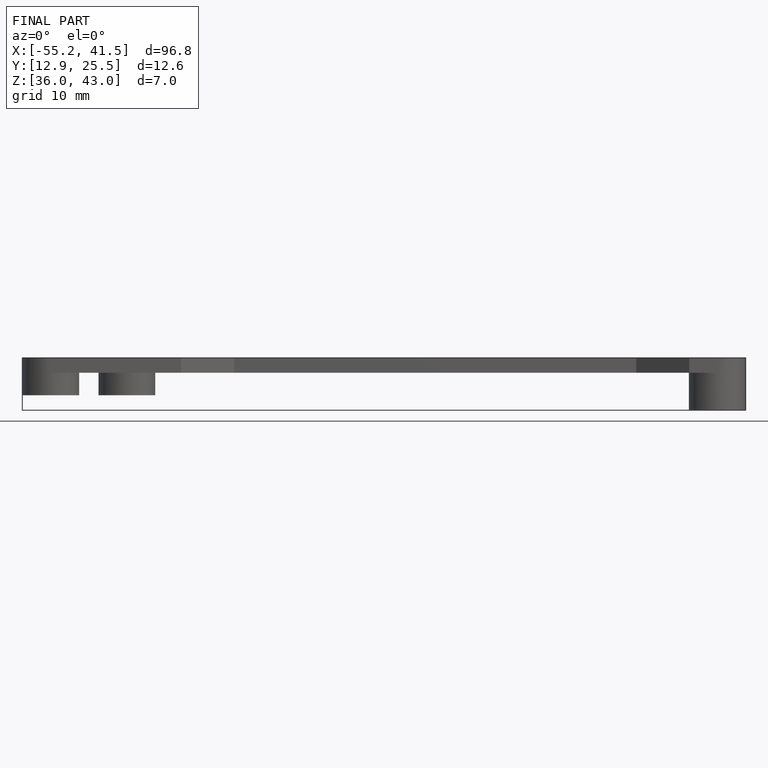
[diagram: finished part — front view with bounding-box wireframe]
